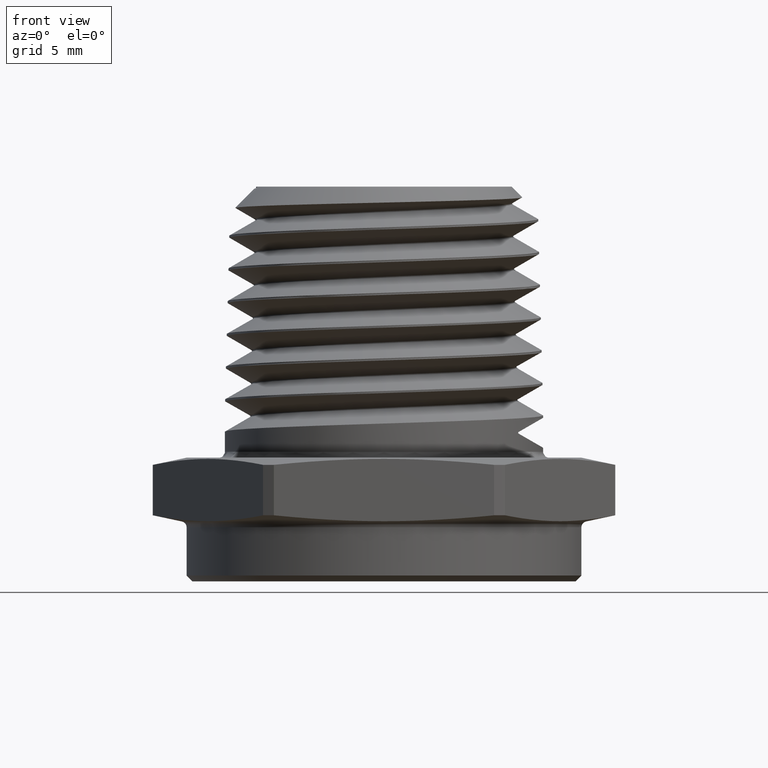
[diagram: clean part render]
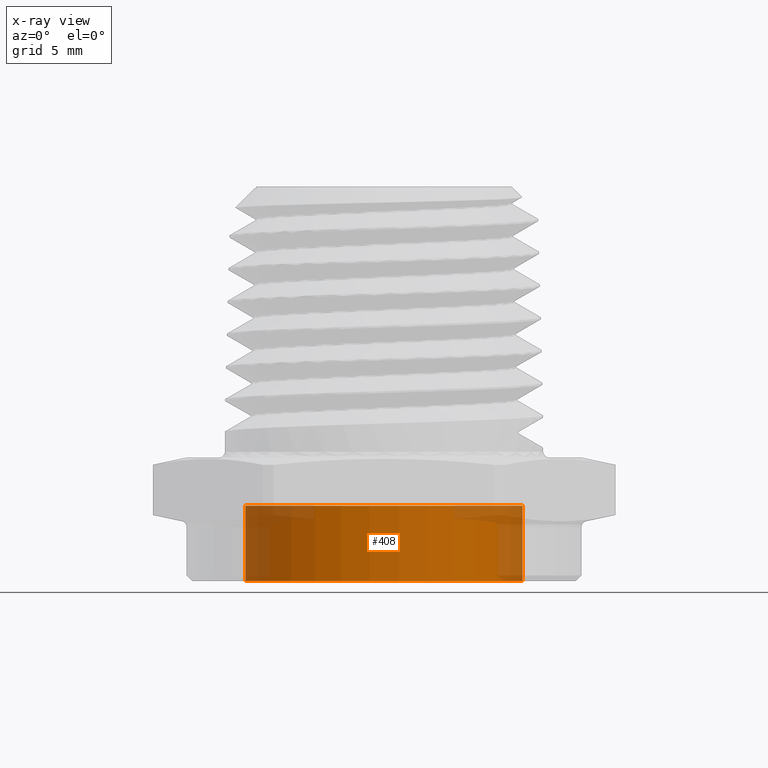
[diagram: x-ray — body ghosted, one internal face saturated and labeled with its STEP entity id]
A machine part, front view, then the same camera in x-ray: the body is ghosted and one INTERNAL B-rep face — a face not visible from any outside direction — is saturated and labeled: STEP entity #408.
In plain terms, the highlighted cylindrical surface (partial cylindrical patch) has radius 5.969 mm, axis along (-0, -0, -1).
Its self-contained STEP definition (entity closure, byte-faithful):
#40 = EDGE_LOOP ( 'NONE', ( #744, #745, #746, #747 ) ) ;
#408 = ADVANCED_FACE ( 'NONE', ( #1096 ), #1097, .F. ) ;
#537 = EDGE_CURVE ( 'NONE', #1275, #869, #1171, .T. ) ;
#538 = EDGE_CURVE ( 'NONE', #1275, #871, #1173, .T. ) ;
#539 = EDGE_CURVE ( 'NONE', #871, #872, #1168, .T. ) ;
#540 = EDGE_CURVE ( 'NONE', #869, #872, #1176, .T. ) ;
#677 = AXIS2_PLACEMENT_3D ( 'NONE', #2736, #2737, #2734 ) ;
#701 = AXIS2_PLACEMENT_3D ( 'NONE', #3707, #3708, #3709 ) ;
#702 = AXIS2_PLACEMENT_3D ( 'NONE', #3713, #3714, #3715 ) ;
#744 = ORIENTED_EDGE ( 'NONE', *, *, #537, .F. ) ;
#745 = ORIENTED_EDGE ( 'NONE', *, *, #538, .T. ) ;
#746 = ORIENTED_EDGE ( 'NONE', *, *, #539, .T. ) ;
#747 = ORIENTED_EDGE ( 'NONE', *, *, #540, .F. ) ;
#869 = VERTEX_POINT ( 'NONE', #4144 ) ;
#871 = VERTEX_POINT ( 'NONE', #4145 ) ;
#872 = VERTEX_POINT ( 'NONE', #4146 ) ;
#1096 = FACE_OUTER_BOUND ( 'NONE', #40, .T. ) ;
#1097 = CYLINDRICAL_SURFACE ( 'NONE', #677, 0.2349999999999999300 ) ;
#1168 = CIRCLE ( 'NONE', #702, 0.2349999999999999300 ) ;
#1171 = CIRCLE ( 'NONE', #701, 0.2349999999999999300 ) ;
#1173 = LINE ( 'NONE', #3701, #1175 ) ;
#1175 = VECTOR ( 'NONE', #3702, 39.37007874015748100 ) ;
#1176 = LINE ( 'NONE', #3710, #1178 ) ;
#1178 = VECTOR ( 'NONE', #3706, 39.37007874015748100 ) ;
#1275 = VERTEX_POINT ( 'NONE', #4283 ) ;
#2734 = DIRECTION ( 'NONE',  ( -1.000000000000000000, 0.0000000000000000000, 1.453110634927799900E-016 ) ) ;
#2736 = CARTESIAN_POINT ( 'NONE',  ( -3.414809992080329000E-017, 0.0000000000000000000, -0.1000000000000000100 ) ) ;
#2737 = DIRECTION ( 'NONE',  ( -1.224646799147353200E-016, -0.0000000000000000000, -1.000000000000000000 ) ) ;
#3701 = CARTESIAN_POINT ( 'NONE',  ( 0.2349999999999998800, 2.877919977996279200E-017, -0.1000000000000000500 ) ) ;
#3702 = DIRECTION ( 'NONE',  ( -1.224646799147353200E-016, -0.0000000000000000000, -1.000000000000000000 ) ) ;
#3706 = DIRECTION ( 'NONE',  ( -1.224646799147353200E-016, -0.0000000000000000000, -1.000000000000000000 ) ) ;
#3707 = CARTESIAN_POINT ( 'NONE',  ( -1.845912084826200500E-017, 0.0000000000000000000, 0.02811023622047241500 ) ) ;
#3708 = DIRECTION ( 'NONE',  ( -1.224646799147353200E-016, -0.0000000000000000000, -1.000000000000000000 ) ) ;
#3709 = DIRECTION ( 'NONE',  ( -1.000000000000000000, 0.0000000000000000000, 1.271471805561824800E-016 ) ) ;
#3710 = CARTESIAN_POINT ( 'NONE',  ( -0.2349999999999999600, 0.0000000000000000000, -0.09999999999999997800 ) ) ;
#3713 = CARTESIAN_POINT ( 'NONE',  ( -3.414809992080329000E-017, 0.0000000000000000000, -0.1000000000000000500 ) ) ;
#3714 = DIRECTION ( 'NONE',  ( -1.224646799147353200E-016, -0.0000000000000000000, -1.000000000000000000 ) ) ;
#3715 = DIRECTION ( 'NONE',  ( -1.000000000000000000, 0.0000000000000000000, 1.453110634927799900E-016 ) ) ;
#4144 = CARTESIAN_POINT ( 'NONE',  ( -0.2349999999999999600, 0.0000000000000000000, 0.02811023622047244600 ) ) ;
#4145 = CARTESIAN_POINT ( 'NONE',  ( 0.2349999999999998800, 2.877919977996279200E-017, -0.1000000000000000700 ) ) ;
#4146 = CARTESIAN_POINT ( 'NONE',  ( -0.2349999999999999600, 0.0000000000000000000, -0.1000000000000000100 ) ) ;
#4283 = CARTESIAN_POINT ( 'NONE',  ( 0.2349999999999998800, 2.877919977996279200E-017, 0.02811023622047238700 ) ) ;